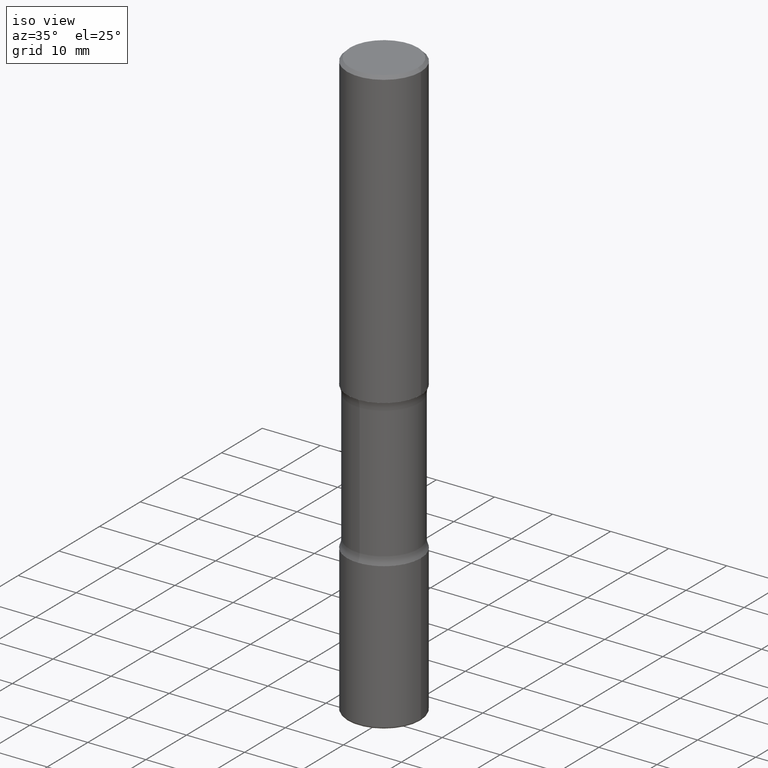
[diagram: clean part render]
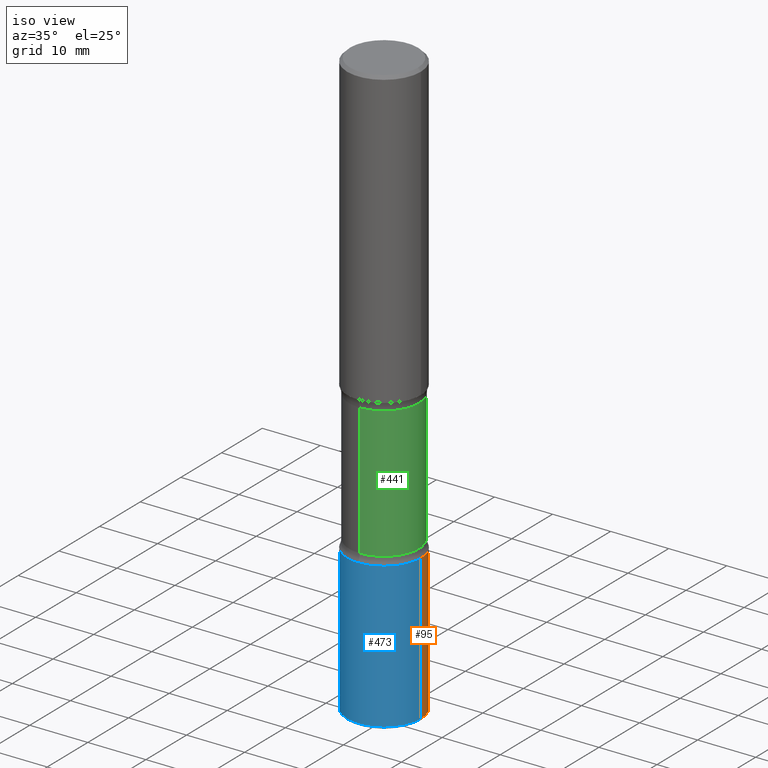
[diagram: same view with three faces highlighted in distinct colors, each labeled with its STEP entity id]
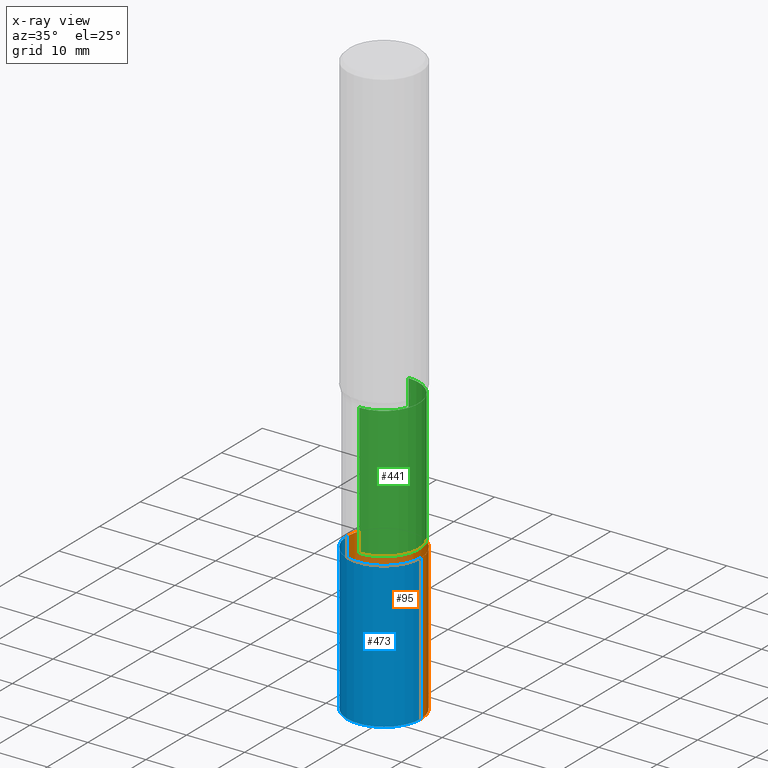
[diagram: x-ray of the same camera — body ghosted, the three highlighted faces saturated]
A machine part, iso view with three faces highlighted in distinct colors.
The next image is the same camera in x-ray (body ghosted, the three faces saturated) — at least one of them is partly hidden behind the body in this view.
Their STEP definitions:

[orange] entity #95 — the highlighted cylindrical surface (partial cylindrical patch) has radius 6.35 mm, axis along (-0, 0, 1).
#24 = CARTESIAN_POINT ( 'NONE',  ( 7.336406418555409790E-29, -1.047444401652943635E-14, -3.000000000000000444 ) ) ;
#33 = EDGE_CURVE ( 'NONE', #232, #40, #370, .T. ) ;
#38 = DIRECTION ( 'NONE',  ( -2.445468806185136597E-29, 3.491481338843145583E-15, 1.000000000000000000 ) ) ;
#40 = VERTEX_POINT ( 'NONE', #267 ) ;
#65 = VECTOR ( 'NONE', #325, 39.37007874015748143 ) ;
#71 = DIRECTION ( 'NONE',  ( -2.445468806185136597E-29, 3.491481338843145583E-15, 1.000000000000000000 ) ) ;
#80 = CARTESIAN_POINT ( 'NONE',  ( 0.2500000000000005551, -1.565929380471150390E-14, -3.984999999999999876 ) ) ;
#95 = ADVANCED_FACE ( 'NONE', ( #402 ), #416, .T. ) ;
#107 = AXIS2_PLACEMENT_3D ( 'NONE', #273, #38, #508 ) ;
#119 = CARTESIAN_POINT ( 'NONE',  ( 0.000000000000000000, 0.000000000000000000, 0.000000000000000000 ) ) ;
#132 = ORIENTED_EDGE ( 'NONE', *, *, #249, .F. ) ;
#142 = ORIENTED_EDGE ( 'NONE', *, *, #33, .T. ) ;
#149 = CARTESIAN_POINT ( 'NONE',  ( 0.2500000000000003331, -1.745740669421569044E-15, 1.219044193948985630E-29 ) ) ;
#157 = CIRCLE ( 'NONE', #281, 0.2500000000000002776 ) ;
#193 = DIRECTION ( 'NONE',  ( 1.000000000000000000, -6.982962677686266711E-15, 4.876176775795935793E-29 ) ) ;
#196 = EDGE_CURVE ( 'NONE', #475, #40, #157, .T. ) ;
#206 = LINE ( 'NONE', #149, #543 ) ;
#218 = ORIENTED_EDGE ( 'NONE', *, *, #196, .F. ) ;
#232 = VERTEX_POINT ( 'NONE', #549 ) ;
#242 = EDGE_CURVE ( 'NONE', #385, #232, #560, .T. ) ;
#249 = EDGE_CURVE ( 'NONE', #385, #475, #206, .T. ) ;
#256 = ORIENTED_EDGE ( 'NONE', *, *, #242, .T. ) ;
#267 = CARTESIAN_POINT ( 'NONE',  ( -0.2500000000000002776, -1.041764173650943238E-14, -3.000000000000000444 ) ) ;
#273 = CARTESIAN_POINT ( 'NONE',  ( 9.745193192647769069E-29, -1.391355313528993407E-14, -3.984999999999999876 ) ) ;
#281 = AXIS2_PLACEMENT_3D ( 'NONE', #24, #71, #285 ) ;
#285 = DIRECTION ( 'NONE',  ( 1.000000000000000000, -6.982962677686270655E-15, 0.000000000000000000 ) ) ;
#325 = DIRECTION ( 'NONE',  ( -2.445468806185136877E-29, 3.491481338843145188E-15, 1.000000000000000000 ) ) ;
#370 = LINE ( 'NONE', #546, #65 ) ;
#378 = AXIS2_PLACEMENT_3D ( 'NONE', #119, #502, #193 ) ;
#383 = DIRECTION ( 'NONE',  ( -2.445468806185136877E-29, 3.491481338843145188E-15, 1.000000000000000000 ) ) ;
#385 = VERTEX_POINT ( 'NONE', #80 ) ;
#396 = EDGE_LOOP ( 'NONE', ( #256, #142, #218, #132 ) ) ;
#402 = FACE_OUTER_BOUND ( 'NONE', #396, .T. ) ;
#416 = CYLINDRICAL_SURFACE ( 'NONE', #378, 0.2500000000000003331 ) ;
#466 = CARTESIAN_POINT ( 'NONE',  ( 0.2500000000000002776, -1.222018468595100619E-14, -3.000000000000000444 ) ) ;
#475 = VERTEX_POINT ( 'NONE', #466 ) ;
#502 = DIRECTION ( 'NONE',  ( -2.445468806185136597E-29, 3.491481338843145583E-15, 1.000000000000000000 ) ) ;
#508 = DIRECTION ( 'NONE',  ( 1.000000000000000000, -6.982962677686267499E-15, 0.000000000000000000 ) ) ;
#543 = VECTOR ( 'NONE', #383, 39.37007874015748143 ) ;
#546 = CARTESIAN_POINT ( 'NONE',  ( -0.2500000000000003331, 1.776356839400252831E-15, -1.229733772563727987E-29 ) ) ;
#549 = CARTESIAN_POINT ( 'NONE',  ( -0.2500000000000005551, -1.213719629588967887E-14, -3.984999999999999876 ) ) ;
#560 = CIRCLE ( 'NONE', #107, 0.2500000000000003886 ) ;

[blue] entity #473 — the highlighted cylindrical surface (partial cylindrical patch) has radius 6.35 mm, axis along (-0, 0, 1).
#26 = AXIS2_PLACEMENT_3D ( 'NONE', #307, #446, #453 ) ;
#33 = EDGE_CURVE ( 'NONE', #232, #40, #370, .T. ) ;
#40 = VERTEX_POINT ( 'NONE', #267 ) ;
#48 = DIRECTION ( 'NONE',  ( -2.445468806185136597E-29, 3.491481338843145583E-15, 1.000000000000000000 ) ) ;
#65 = VECTOR ( 'NONE', #325, 39.37007874015748143 ) ;
#80 = CARTESIAN_POINT ( 'NONE',  ( 0.2500000000000005551, -1.565929380471150390E-14, -3.984999999999999876 ) ) ;
#86 = EDGE_CURVE ( 'NONE', #40, #475, #482, .T. ) ;
#138 = ORIENTED_EDGE ( 'NONE', *, *, #33, .F. ) ;
#143 = CIRCLE ( 'NONE', #178, 0.2500000000000003886 ) ;
#149 = CARTESIAN_POINT ( 'NONE',  ( 0.2500000000000003331, -1.745740669421569044E-15, 1.219044193948985630E-29 ) ) ;
#178 = AXIS2_PLACEMENT_3D ( 'NONE', #438, #48, #440 ) ;
#206 = LINE ( 'NONE', #149, #543 ) ;
#208 = CYLINDRICAL_SURFACE ( 'NONE', #398, 0.2500000000000003331 ) ;
#232 = VERTEX_POINT ( 'NONE', #549 ) ;
#249 = EDGE_CURVE ( 'NONE', #385, #475, #206, .T. ) ;
#251 = ORIENTED_EDGE ( 'NONE', *, *, #249, .T. ) ;
#267 = CARTESIAN_POINT ( 'NONE',  ( -0.2500000000000002776, -1.041764173650943238E-14, -3.000000000000000444 ) ) ;
#307 = CARTESIAN_POINT ( 'NONE',  ( 7.336406418555409790E-29, -1.047444401652943635E-14, -3.000000000000000444 ) ) ;
#325 = DIRECTION ( 'NONE',  ( -2.445468806185136877E-29, 3.491481338843145188E-15, 1.000000000000000000 ) ) ;
#336 = ORIENTED_EDGE ( 'NONE', *, *, #86, .F. ) ;
#338 = CARTESIAN_POINT ( 'NONE',  ( 0.000000000000000000, 0.000000000000000000, 0.000000000000000000 ) ) ;
#370 = LINE ( 'NONE', #546, #65 ) ;
#383 = DIRECTION ( 'NONE',  ( -2.445468806185136877E-29, 3.491481338843145188E-15, 1.000000000000000000 ) ) ;
#385 = VERTEX_POINT ( 'NONE', #80 ) ;
#398 = AXIS2_PLACEMENT_3D ( 'NONE', #338, #484, #427 ) ;
#427 = DIRECTION ( 'NONE',  ( 1.000000000000000000, -6.982962677686266711E-15, 4.876176775795935793E-29 ) ) ;
#438 = CARTESIAN_POINT ( 'NONE',  ( 9.745193192647769069E-29, -1.391355313528993407E-14, -3.984999999999999876 ) ) ;
#440 = DIRECTION ( 'NONE',  ( 1.000000000000000000, -6.982962677686267499E-15, 0.000000000000000000 ) ) ;
#446 = DIRECTION ( 'NONE',  ( -2.445468806185136597E-29, 3.491481338843145583E-15, 1.000000000000000000 ) ) ;
#453 = DIRECTION ( 'NONE',  ( 1.000000000000000000, -6.982962677686270655E-15, 0.000000000000000000 ) ) ;
#466 = CARTESIAN_POINT ( 'NONE',  ( 0.2500000000000002776, -1.222018468595100619E-14, -3.000000000000000444 ) ) ;
#473 = ADVANCED_FACE ( 'NONE', ( #504 ), #208, .T. ) ;
#475 = VERTEX_POINT ( 'NONE', #466 ) ;
#482 = CIRCLE ( 'NONE', #26, 0.2500000000000002776 ) ;
#484 = DIRECTION ( 'NONE',  ( -2.445468806185136597E-29, 3.491481338843145583E-15, 1.000000000000000000 ) ) ;
#485 = EDGE_LOOP ( 'NONE', ( #138, #519, #251, #336 ) ) ;
#504 = FACE_OUTER_BOUND ( 'NONE', #485, .T. ) ;
#519 = ORIENTED_EDGE ( 'NONE', *, *, #558, .T. ) ;
#543 = VECTOR ( 'NONE', #383, 39.37007874015748143 ) ;
#546 = CARTESIAN_POINT ( 'NONE',  ( -0.2500000000000003331, 1.776356839400252831E-15, -1.229733772563727987E-29 ) ) ;
#549 = CARTESIAN_POINT ( 'NONE',  ( -0.2500000000000005551, -1.213719629588967887E-14, -3.984999999999999876 ) ) ;
#558 = EDGE_CURVE ( 'NONE', #232, #385, #143, .T. ) ;

[green] entity #441 — the highlighted cylindrical surface (partial cylindrical patch) has radius 6.0325 mm, axis along (0, -0, -1).
#14 = DIRECTION ( 'NONE',  ( 6.982962677686265133E-15, 1.000000000000000000, -2.300503573612010239E-15 ) ) ;
#29 = CARTESIAN_POINT ( 'NONE',  ( 7.198535619023675570E-29, -1.029083161580289368E-14, -2.945513763205741320 ) ) ;
#44 = AXIS2_PLACEMENT_3D ( 'NONE', #29, #228, #407 ) ;
#47 = ORIENTED_EDGE ( 'NONE', *, *, #314, .T. ) ;
#51 = EDGE_CURVE ( 'NONE', #297, #151, #534, .T. ) ;
#58 = DIRECTION ( 'NONE',  ( 2.530378452311521502E-29, -3.369885892833230986E-15, -1.000000000000000000 ) ) ;
#84 = VERTEX_POINT ( 'NONE', #530 ) ;
#101 = ORIENTED_EDGE ( 'NONE', *, *, #547, .F. ) ;
#102 = CARTESIAN_POINT ( 'NONE',  ( 9.866784870866931853E-29, -1.384432990936266734E-14, -4.000000000000000000 ) ) ;
#133 = EDGE_LOOP ( 'NONE', ( #209, #47, #220, #101 ) ) ;
#151 = VERTEX_POINT ( 'NONE', #330 ) ;
#172 = CARTESIAN_POINT ( 'NONE',  ( 1.658453635950538436E-15, 0.2374999999999928557, -2.054486236794259568 ) ) ;
#175 = DIRECTION ( 'NONE',  ( 2.530378452311521502E-29, -3.369885892833230986E-15, -1.000000000000000000 ) ) ;
#184 = DIRECTION ( 'NONE',  ( 6.982962677686265133E-15, 1.000000000000000000, -3.450755360418014766E-15 ) ) ;
#209 = ORIENTED_EDGE ( 'NONE', *, *, #449, .T. ) ;
#220 = ORIENTED_EDGE ( 'NONE', *, *, #51, .F. ) ;
#227 = CARTESIAN_POINT ( 'NONE',  ( 4.943898765775623630E-29, -7.288170524422749615E-15, -2.054486236794258680 ) ) ;
#228 = DIRECTION ( 'NONE',  ( 2.530378452311521502E-29, -3.369885892833230986E-15, -1.000000000000000000 ) ) ;
#246 = VECTOR ( 'NONE', #553, 39.37007874015748143 ) ;
#250 = CARTESIAN_POINT ( 'NONE',  ( 1.658453635950560525E-15, 0.2374999999999897748, -2.945513763205741764 ) ) ;
#297 = VERTEX_POINT ( 'NONE', #250 ) ;
#314 = EDGE_CURVE ( 'NONE', #84, #151, #388, .T. ) ;
#330 = CARTESIAN_POINT ( 'NONE',  ( -1.672246386956739071E-15, -0.2375000000000103417, -2.945513763205740876 ) ) ;
#388 = LINE ( 'NONE', #432, #492 ) ;
#395 = CYLINDRICAL_SURFACE ( 'NONE', #498, 0.2375000000000000999 ) ;
#407 = DIRECTION ( 'NONE',  ( 6.982962677686265133E-15, 1.000000000000000000, -2.300503573612010239E-15 ) ) ;
#420 = CARTESIAN_POINT ( 'NONE',  ( 1.658453635950587543E-15, 0.2374999999999862776, -4.000000000000000888 ) ) ;
#432 = CARTESIAN_POINT ( 'NONE',  ( -1.629368274470640415E-15, -0.2375000000000139222, -3.999999999999999556 ) ) ;
#433 = AXIS2_PLACEMENT_3D ( 'NONE', #227, #175, #184 ) ;
#441 = ADVANCED_FACE ( 'NONE', ( #527 ), #395, .T. ) ;
#449 = EDGE_CURVE ( 'NONE', #556, #84, #462, .T. ) ;
#462 = CIRCLE ( 'NONE', #433, 0.2375000000000001277 ) ;
#492 = VECTOR ( 'NONE', #557, 39.37007874015748143 ) ;
#498 = AXIS2_PLACEMENT_3D ( 'NONE', #102, #58, #14 ) ;
#527 = FACE_OUTER_BOUND ( 'NONE', #133, .T. ) ;
#530 = CARTESIAN_POINT ( 'NONE',  ( -1.672246386956763723E-15, -0.2375000000000074274, -2.054486236794258236 ) ) ;
#534 = CIRCLE ( 'NONE', #44, 0.2375000000000000722 ) ;
#547 = EDGE_CURVE ( 'NONE', #556, #297, #550, .T. ) ;
#550 = LINE ( 'NONE', #420, #246 ) ;
#553 = DIRECTION ( 'NONE',  ( 2.530378452311521502E-29, -3.369885892833230592E-15, -1.000000000000000000 ) ) ;
#556 = VERTEX_POINT ( 'NONE', #172 ) ;
#557 = DIRECTION ( 'NONE',  ( 2.530378452311521502E-29, -3.369885892833230592E-15, -1.000000000000000000 ) ) ;